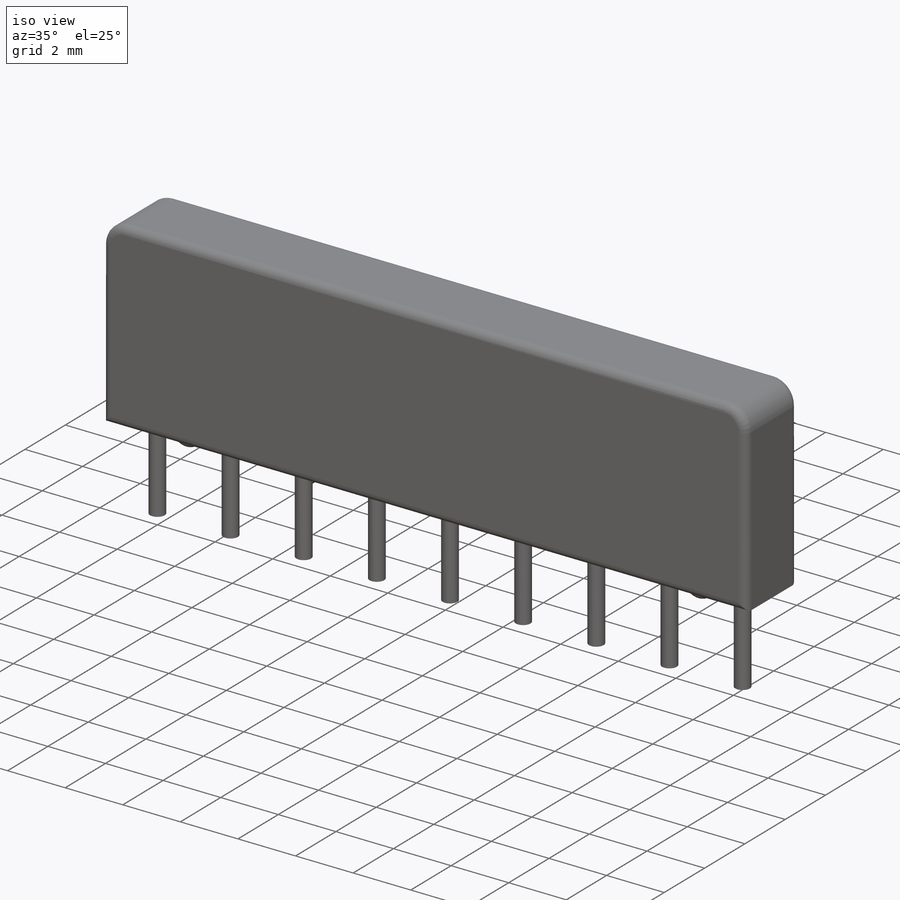
[diagram: iso view]
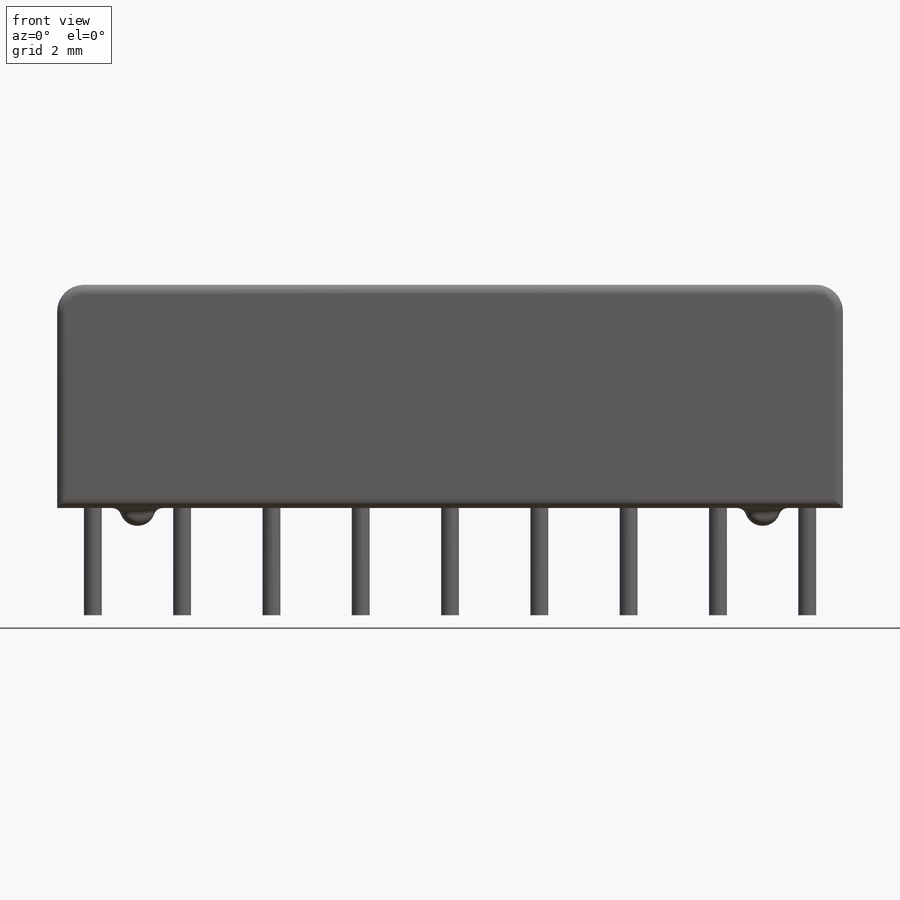
[diagram: front view]
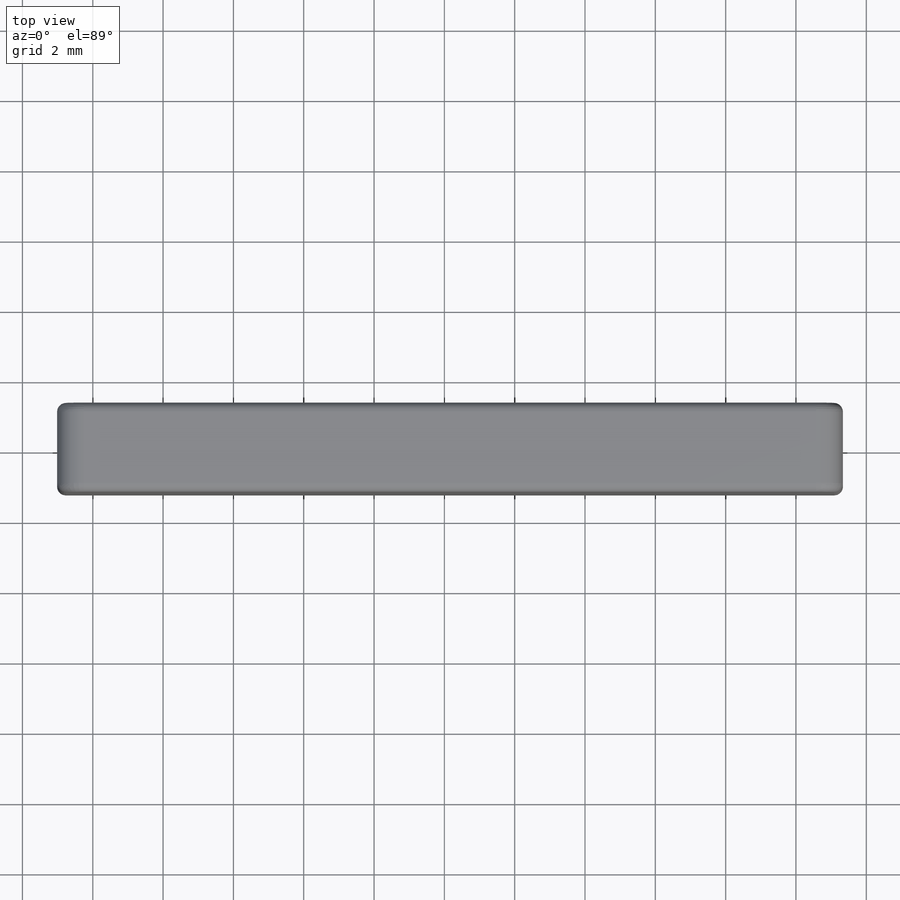
[diagram: top view]
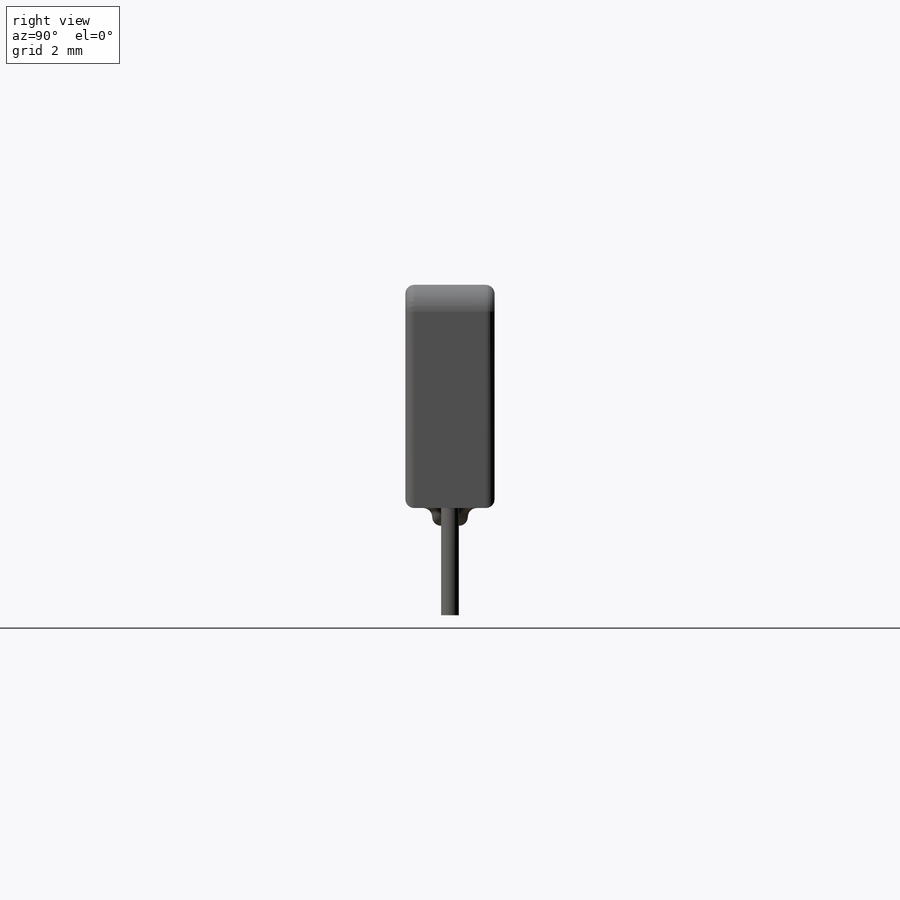
[diagram: right view]
SOLIDWORKS PART (.sldprt)
format: sldprt  version: not decoded by parser v0  size: 311,808 bytes
history: native  units: mm
features: sketch x5, fillet x4, plane x2, extrude x2, material x1, sweep x1, mirror x1, pattern_linear x1 (+12 scaffold rows collapsed)
feature tree (29):
  scaffold x12  (default folders/planes/origin — collapsed)
  material  "Material <not specified>"
  plane  "Plane4"  Offset=0.508mm
  sketch  "Sketch1"  dims[D1=0.508mm]
  sketch  "Sketch2"  dims[D1=3.048mm]
  sweep  "Base-Sweep"
  sketch  "Sketch3"  dims[D1=6.35mm D2=22.352mm D3=1.016mm]
  extrude  "Boss-Extrude1"  Depth=2.54mm
  fillet  "Fillet1"  Radius=0.762mm
  fillet  "Fillet2"  Radius=0.254mm
  sketch  "Sketch4"  dims[D2=0.508mm D1=1.27mm]
  extrude  "Boss-Extrude2"  Depth=1.016mm
  fillet  "Fillet3"  Radius=0.254mm
  fillet  "Fillet4"  Radius=0.254mm
  plane  "Plane5"  Offset=11.176mm
  mirror  "Mirror1"
  pattern_linear  "LPattern1"  Count1=9 Count2=1 Spacing1=2.54mm Spacing2=50mm
  sketch  "Component_Outline"
decode coverage: 11 of 14 modeling features carry decoded parameters
note: suppression state not decoded; provenance and decode notes live in map.json
